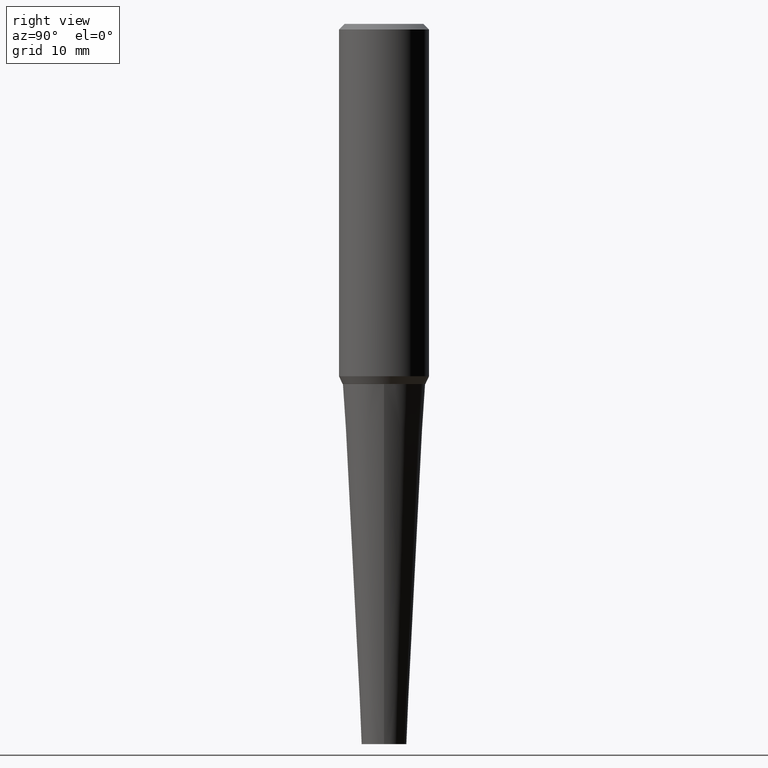
[diagram: clean part render]
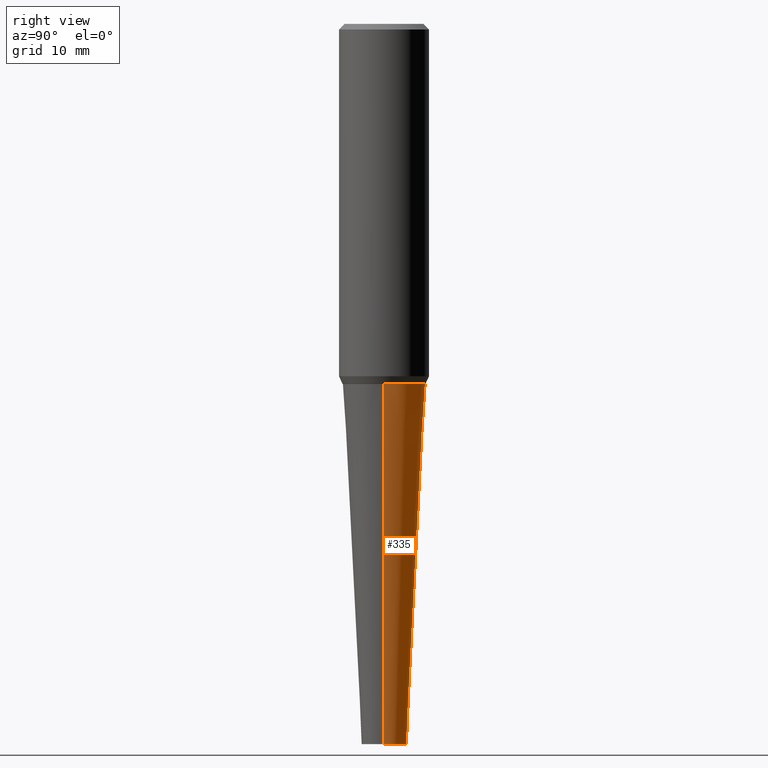
[diagram: same view with one face highlighted and labeled with its STEP entity id]
A machine part, right view. The second image highlights one B-rep face of the part: STEP entity #335.
In plain terms, the highlighted conical surface has half-angle 3 deg.
Its self-contained STEP definition (entity closure, byte-faithful):
#3 = AXIS2_PLACEMENT_3D ( 'NONE', #415, #62, #383 ) ;
#41 = LINE ( 'NONE', #341, #115 ) ;
#42 = AXIS2_PLACEMENT_3D ( 'NONE', #109, #230, #83 ) ;
#53 = DIRECTION ( 'NONE',  ( 0.05233595624293686799, 3.121236355867758903E-15, 0.9986295347545742773 ) ) ;
#62 = DIRECTION ( 'NONE',  ( -2.445468806185136597E-29, 3.491481338843145583E-15, 1.000000000000000000 ) ) ;
#79 = DIRECTION ( 'NONE',  ( 1.000000000000000000, -6.982962677686275388E-15, 0.000000000000000000 ) ) ;
#83 = DIRECTION ( 'NONE',  ( 1.000000000000000000, -6.982962677686275388E-15, 0.000000000000000000 ) ) ;
#101 = EDGE_CURVE ( 'NONE', #242, #342, #138, .T. ) ;
#104 = CARTESIAN_POINT ( 'NONE',  ( 9.781875224740546387E-29, -1.396592535537258233E-14, -4.000000000000000000 ) ) ;
#109 = CARTESIAN_POINT ( 'NONE',  ( 9.781875224740546387E-29, -1.396592535537258233E-14, -4.000000000000000000 ) ) ;
#115 = VECTOR ( 'NONE', #53, 39.37007874015748143 ) ;
#120 = CARTESIAN_POINT ( 'NONE',  ( -0.2298155585660685007, -5.350024920648591981E-15, -2.000000000000000000 ) ) ;
#138 = CIRCLE ( 'NONE', #42, 0.1250000000000000555 ) ;
#142 = ORIENTED_EDGE ( 'NONE', *, *, #173, .F. ) ;
#173 = EDGE_CURVE ( 'NONE', #394, #405, #186, .T. ) ;
#184 = EDGE_LOOP ( 'NONE', ( #234, #307, #142, #276 ) ) ;
#186 = CIRCLE ( 'NONE', #3, 0.2298155585660685007 ) ;
#190 = CARTESIAN_POINT ( 'NONE',  ( 0.1250000000000000555, -1.483879569008336725E-14, -4.000000000000000000 ) ) ;
#194 = CARTESIAN_POINT ( 'NONE',  ( -0.1250000000000000555, -1.307774693567245552E-14, -4.000000000000000000 ) ) ;
#229 = DIRECTION ( 'NONE',  ( -2.445468806185136597E-29, 3.491481338843145583E-15, 1.000000000000000000 ) ) ;
#230 = DIRECTION ( 'NONE',  ( -2.445468806185136597E-29, 3.491481338843145583E-15, 1.000000000000000000 ) ) ;
#234 = ORIENTED_EDGE ( 'NONE', *, *, #101, .T. ) ;
#242 = VERTEX_POINT ( 'NONE', #190 ) ;
#255 = CARTESIAN_POINT ( 'NONE',  ( 0.2298155585660685007, -8.587756145904770253E-15, -2.000000000000000000 ) ) ;
#257 = CONICAL_SURFACE ( 'NONE', #328, 0.1250000000000000555, 0.05235987755982290243 ) ;
#264 = CARTESIAN_POINT ( 'NONE',  ( -0.1250000000000000555, -9.213885928160524934E-15, -4.000000000000000000 ) ) ;
#266 = DIRECTION ( 'NONE',  ( -0.05233595624293686799, 3.858565720287981448E-15, 0.9986295347545742773 ) ) ;
#276 = ORIENTED_EDGE ( 'NONE', *, *, #363, .F. ) ;
#307 = ORIENTED_EDGE ( 'NONE', *, *, #357, .T. ) ;
#318 = VECTOR ( 'NONE', #266, 39.37007874015748143 ) ;
#328 = AXIS2_PLACEMENT_3D ( 'NONE', #104, #229, #79 ) ;
#335 = ADVANCED_FACE ( 'NONE', ( #399 ), #257, .T. ) ;
#341 = CARTESIAN_POINT ( 'NONE',  ( 0.1250000000000000555, -1.483879569008336725E-14, -4.000000000000000000 ) ) ;
#342 = VERTEX_POINT ( 'NONE', #264 ) ;
#357 = EDGE_CURVE ( 'NONE', #342, #405, #388, .T. ) ;
#363 = EDGE_CURVE ( 'NONE', #242, #394, #41, .T. ) ;
#383 = DIRECTION ( 'NONE',  ( 1.000000000000000000, -6.982962677686267499E-15, 0.000000000000000000 ) ) ;
#388 = LINE ( 'NONE', #194, #318 ) ;
#394 = VERTEX_POINT ( 'NONE', #255 ) ;
#399 = FACE_OUTER_BOUND ( 'NONE', #184, .T. ) ;
#405 = VERTEX_POINT ( 'NONE', #120 ) ;
#415 = CARTESIAN_POINT ( 'NONE',  ( 4.890937612370273194E-29, -6.982962677686291165E-15, -2.000000000000000000 ) ) ;